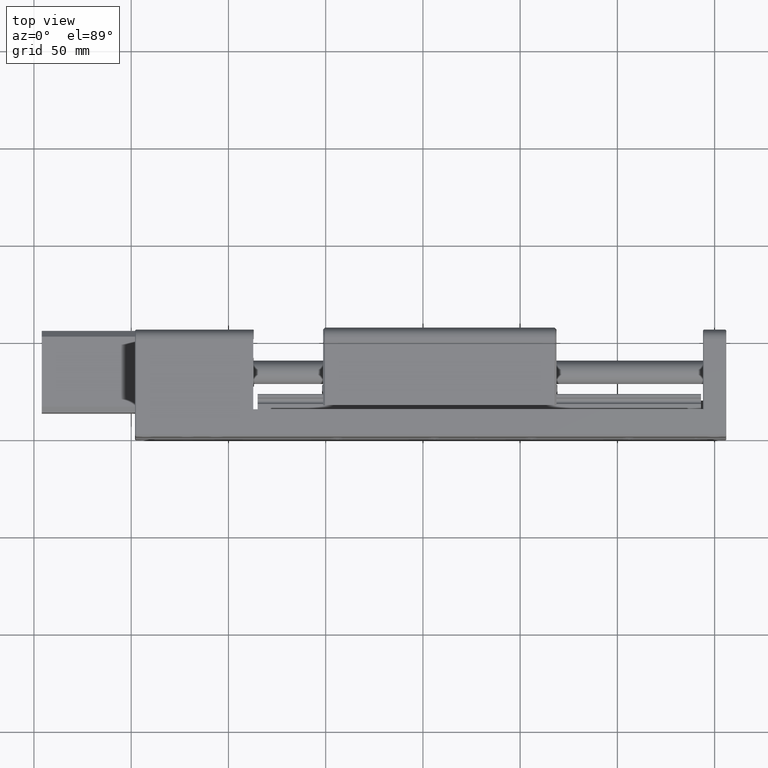
[diagram: clean part render]
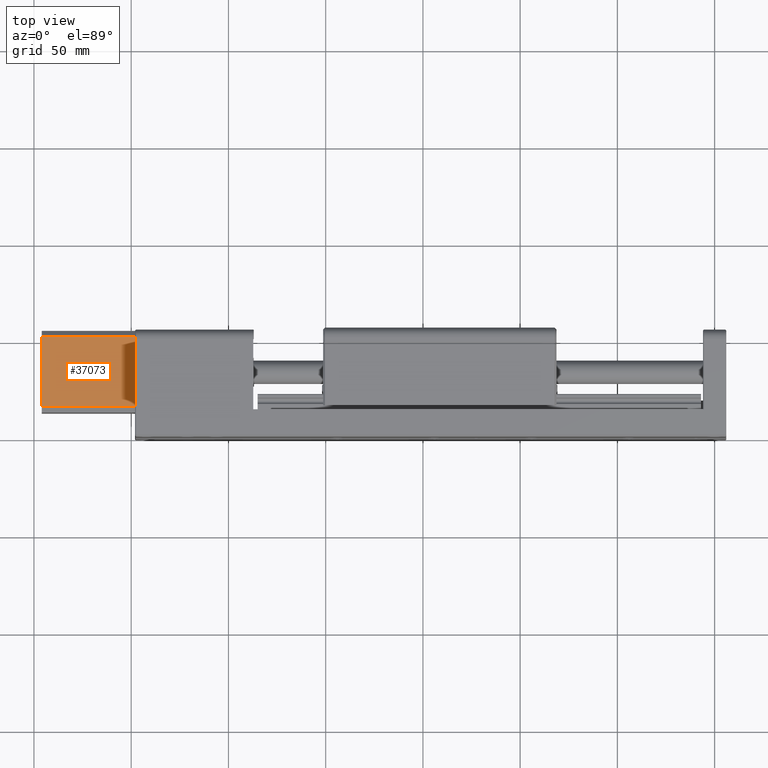
[diagram: same view with one face highlighted and labeled with its STEP entity id]
A machine part, top view. The second image highlights one B-rep face of the part: STEP entity #37073.
In plain terms, the highlighted planar face has unit normal (0, -0, -1).
Its self-contained STEP definition (entity closure, byte-faithful):
#248 = LINE ( 'NONE', #2467, #36208 ) ;
#532 = ORIENTED_EDGE ( 'NONE', *, *, #8022, .T. ) ;
#2100 = LINE ( 'NONE', #16758, #9056 ) ;
#2137 = CARTESIAN_POINT ( 'NONE',  ( 203.9875862552706300, 55.00000000000006400, 447.9433306992481200 ) ) ;
#2467 = CARTESIAN_POINT ( 'NONE',  ( 251.9875862552707400, 55.00000000000006400, 447.9433306992481200 ) ) ;
#3779 = EDGE_CURVE ( 'NONE', #34114, #32298, #15094, .T. ) ;
#8022 = EDGE_CURVE ( 'NONE', #28419, #32298, #16636, .T. ) ;
#9056 = VECTOR ( 'NONE', #28242, 1000.000000000000000 ) ;
#10927 = DIRECTION ( 'NONE',  ( -4.693749375163775800E-032, 1.000000000000000000, -3.445092848397666500E-016 ) ) ;
#10945 = EDGE_CURVE ( 'NONE', #23734, #28419, #248, .T. ) ;
#11213 = CARTESIAN_POINT ( 'NONE',  ( 203.9875862552706300, 16.00000000000001400, 447.9433306992481200 ) ) ;
#11225 = EDGE_CURVE ( 'NONE', #34114, #23734, #2100, .T. ) ;
#11690 = CARTESIAN_POINT ( 'NONE',  ( 203.9875862552706300, 52.00000000000003600, 447.9433306992481200 ) ) ;
#13712 = VECTOR ( 'NONE', #21643, 1000.000000000000000 ) ;
#13966 = PLANE ( 'NONE',  #35658 ) ;
#15094 = LINE ( 'NONE', #33167, #13712 ) ;
#15321 = CARTESIAN_POINT ( 'NONE',  ( 203.9875862552706300, 52.00000000000003600, 447.9433306992481200 ) ) ;
#16636 = LINE ( 'NONE', #15321, #37211 ) ;
#16758 = CARTESIAN_POINT ( 'NONE',  ( 203.9875862552706300, 16.00000000000001400, 447.9433306992481200 ) ) ;
#20363 = FACE_OUTER_BOUND ( 'NONE', #28479, .T. ) ;
#21643 = DIRECTION ( 'NONE',  ( -4.693749375163775800E-032, 1.000000000000000000, -3.445092848397666500E-016 ) ) ;
#23216 = DIRECTION ( 'NONE',  ( 0.0000000000000000000, -3.445092848397666500E-016, -1.000000000000000000 ) ) ;
#23734 = VERTEX_POINT ( 'NONE', #28921 ) ;
#24529 = ORIENTED_EDGE ( 'NONE', *, *, #10945, .T. ) ;
#28242 = DIRECTION ( 'NONE',  ( 1.000000000000000000, -4.693749375163740700E-032, 1.617040240454761700E-047 ) ) ;
#28419 = VERTEX_POINT ( 'NONE', #32591 ) ;
#28479 = EDGE_LOOP ( 'NONE', ( #24529, #532, #30472, #35039 ) ) ;
#28921 = CARTESIAN_POINT ( 'NONE',  ( 251.9875862552707400, 16.00000000000001400, 447.9433306992481200 ) ) ;
#30472 = ORIENTED_EDGE ( 'NONE', *, *, #3779, .F. ) ;
#30950 = DIRECTION ( 'NONE',  ( -1.000000000000000000, 4.693749375163740700E-032, -1.617040240454761700E-047 ) ) ;
#32298 = VERTEX_POINT ( 'NONE', #11690 ) ;
#32591 = CARTESIAN_POINT ( 'NONE',  ( 251.9875862552707400, 52.00000000000003600, 447.9433306992481200 ) ) ;
#33167 = CARTESIAN_POINT ( 'NONE',  ( 203.9875862552706300, 55.00000000000006400, 447.9433306992481200 ) ) ;
#34114 = VERTEX_POINT ( 'NONE', #11213 ) ;
#34879 = DIRECTION ( 'NONE',  ( 1.000000000000000000, -4.693749375163740200E-032, 1.617040240454761700E-047 ) ) ;
#35039 = ORIENTED_EDGE ( 'NONE', *, *, #11225, .T. ) ;
#35658 = AXIS2_PLACEMENT_3D ( 'NONE', #2137, #23216, #34879 ) ;
#36208 = VECTOR ( 'NONE', #10927, 1000.000000000000000 ) ;
#37073 = ADVANCED_FACE ( 'NONE', ( #20363 ), #13966, .F. ) ;
#37211 = VECTOR ( 'NONE', #30950, 1000.000000000000000 ) ;